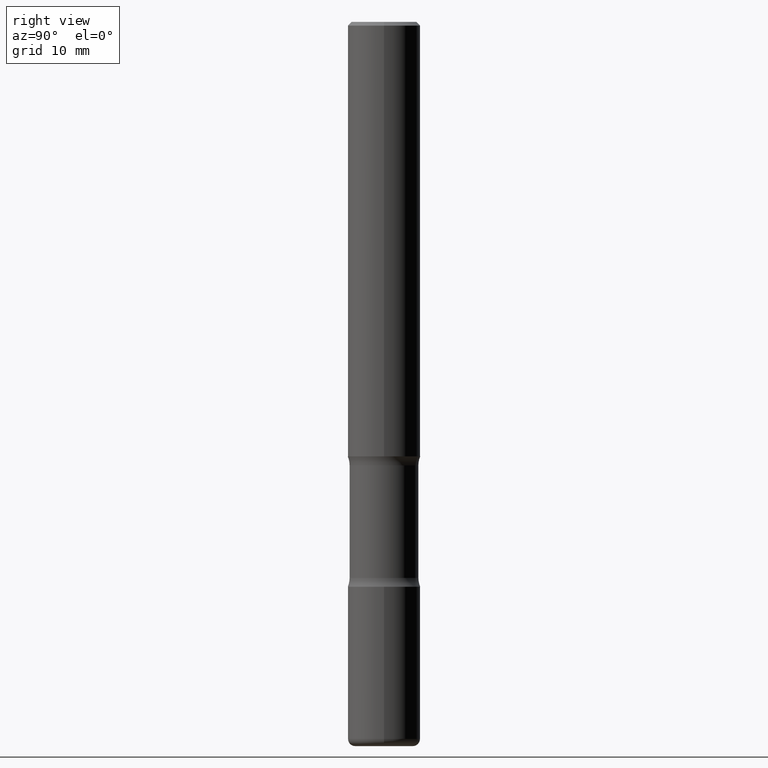
[diagram: clean part render]
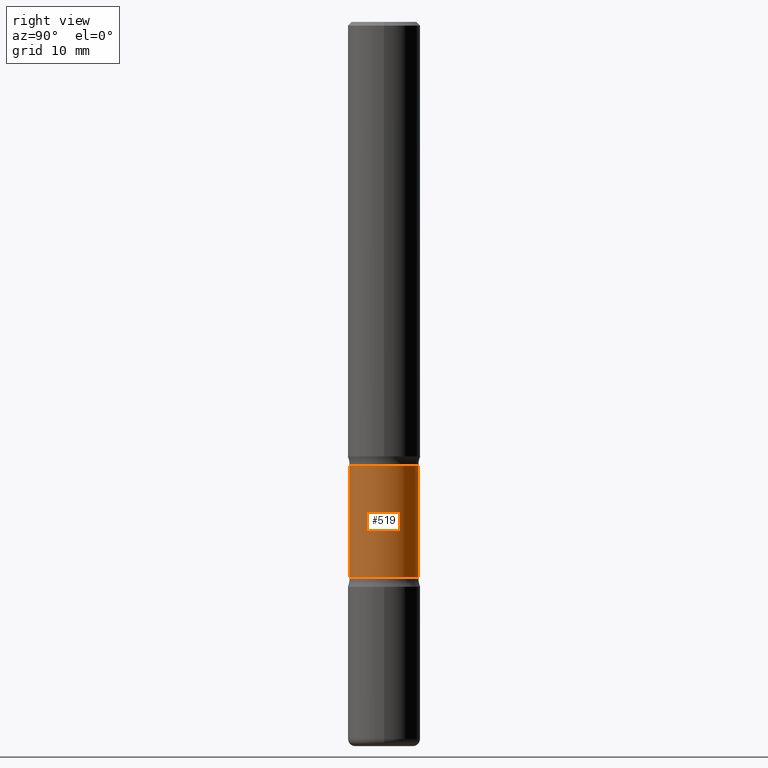
[diagram: same view with one face highlighted and labeled with its STEP entity id]
A machine part, right view. The second image highlights one B-rep face of the part: STEP entity #519.
In plain terms, the highlighted cylindrical surface (edge-blend (fillet) strip) has radius 4.7498 mm, axis along (0, -0, -1).
Its self-contained STEP definition (entity closure, byte-faithful):
#47 = LINE ( 'NONE', #50, #271 ) ;
#50 = CARTESIAN_POINT ( 'NONE',  ( -1.282913125583179628E-15, -0.1870000000000137108, -3.936999999999999389 ) ) ;
#52 = AXIS2_PLACEMENT_3D ( 'NONE', #277, #450, #403 ) ;
#54 = DIRECTION ( 'NONE',  ( 6.982962677686266711E-15, 1.000000000000000000, -2.921762560068729411E-15 ) ) ;
#85 = ORIENTED_EDGE ( 'NONE', *, *, #359, .T. ) ;
#89 = CIRCLE ( 'NONE', #162, 0.1870000000000001106 ) ;
#128 = CARTESIAN_POINT ( 'NONE',  ( 1.305814020727405957E-15, 0.1869999999999895079, -3.022263825191530806 ) ) ;
#134 = AXIS2_PLACEMENT_3D ( 'NONE', #427, #394, #54 ) ;
#162 = AXIS2_PLACEMENT_3D ( 'NONE', #548, #336, #373 ) ;
#173 = CYLINDRICAL_SURFACE ( 'NONE', #134, 0.1870000000000000828 ) ;
#179 = CARTESIAN_POINT ( 'NONE',  ( -1.316701078222244837E-15, -0.1870000000000086315, -2.410836174808469679 ) ) ;
#186 = VERTEX_POINT ( 'NONE', #320 ) ;
#201 = EDGE_CURVE ( 'NONE', #186, #424, #341, .T. ) ;
#212 = VECTOR ( 'NONE', #541, 39.37007874015748143 ) ;
#238 = CIRCLE ( 'NONE', #52, 0.1870000000000000551 ) ;
#245 = ORIENTED_EDGE ( 'NONE', *, *, #552, .F. ) ;
#271 = VECTOR ( 'NONE', #509, 39.37007874015748143 ) ;
#277 = CARTESIAN_POINT ( 'NONE',  ( 7.386223780689915972E-29, -1.055880548925453445E-14, -3.022263825191530362 ) ) ;
#306 = FACE_OUTER_BOUND ( 'NONE', #347, .T. ) ;
#320 = CARTESIAN_POINT ( 'NONE',  ( 1.305814020727390771E-15, 0.1869999999999916174, -2.410836174808470567 ) ) ;
#326 = CARTESIAN_POINT ( 'NONE',  ( -1.316701078222226890E-15, -0.1870000000000106022, -3.022263825191529918 ) ) ;
#336 = DIRECTION ( 'NONE',  ( 2.540626945080028130E-29, -3.355209467880746123E-15, -1.000000000000000000 ) ) ;
#338 = EDGE_CURVE ( 'NONE', #186, #393, #89, .T. ) ;
#341 = LINE ( 'NONE', #413, #212 ) ;
#347 = EDGE_LOOP ( 'NONE', ( #484, #85, #245, #432 ) ) ;
#359 = EDGE_CURVE ( 'NONE', #393, #549, #47, .T. ) ;
#373 = DIRECTION ( 'NONE',  ( 6.982962677686266711E-15, 1.000000000000000000, -2.921762560068729017E-15 ) ) ;
#393 = VERTEX_POINT ( 'NONE', #179 ) ;
#394 = DIRECTION ( 'NONE',  ( 2.540626945080028130E-29, -3.355209467880746123E-15, -1.000000000000000000 ) ) ;
#403 = DIRECTION ( 'NONE',  ( 6.982962677686266711E-15, 1.000000000000000000, -2.921762560068729806E-15 ) ) ;
#413 = CARTESIAN_POINT ( 'NONE',  ( 1.305814020727429425E-15, 0.1869999999999864548, -3.937000000000000721 ) ) ;
#424 = VERTEX_POINT ( 'NONE', #128 ) ;
#427 = CARTESIAN_POINT ( 'NONE',  ( 9.710227154047748282E-29, -1.362793696358492956E-14, -3.937000000000000277 ) ) ;
#432 = ORIENTED_EDGE ( 'NONE', *, *, #201, .F. ) ;
#450 = DIRECTION ( 'NONE',  ( 2.540626945080028130E-29, -3.355209467880746123E-15, -1.000000000000000000 ) ) ;
#484 = ORIENTED_EDGE ( 'NONE', *, *, #338, .T. ) ;
#509 = DIRECTION ( 'NONE',  ( 2.540626945080028130E-29, -3.355209467880745729E-15, -1.000000000000000000 ) ) ;
#519 = ADVANCED_FACE ( 'NONE', ( #306 ), #173, .T. ) ;
#541 = DIRECTION ( 'NONE',  ( 2.540626945080028130E-29, -3.355209467880745729E-15, -1.000000000000000000 ) ) ;
#548 = CARTESIAN_POINT ( 'NONE',  ( 5.832814217159742143E-29, -8.507337647765213396E-15, -2.410836174808470123 ) ) ;
#549 = VERTEX_POINT ( 'NONE', #326 ) ;
#552 = EDGE_CURVE ( 'NONE', #424, #549, #238, .T. ) ;